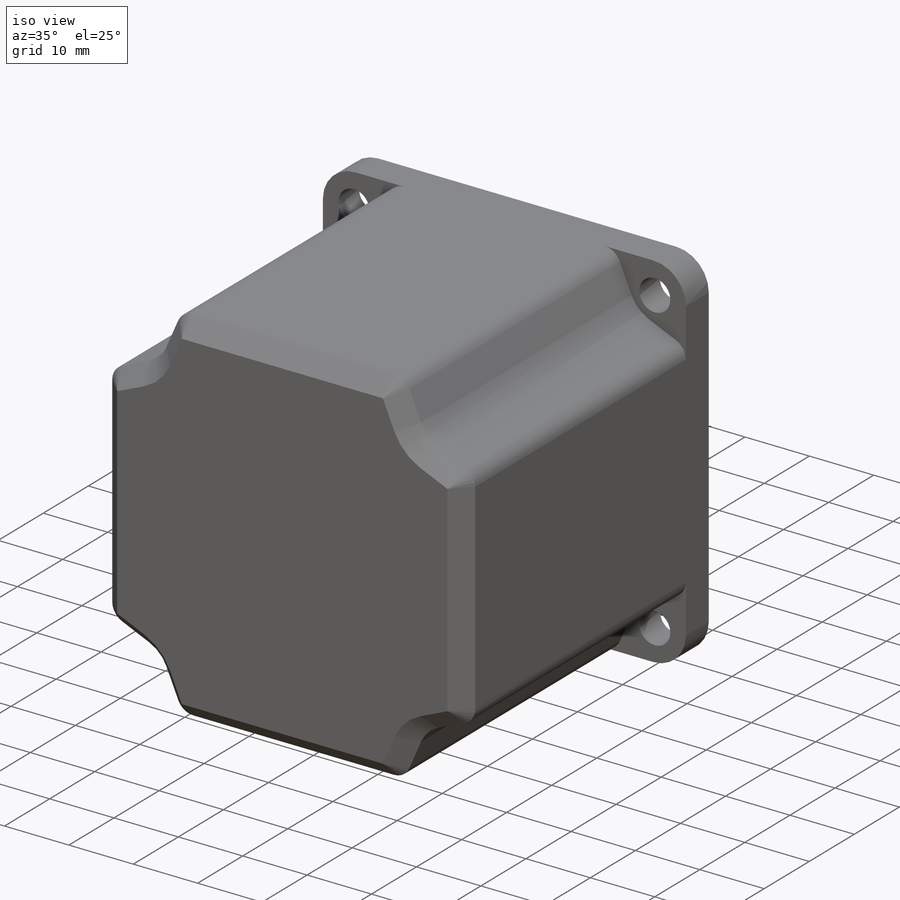
[diagram: iso view]
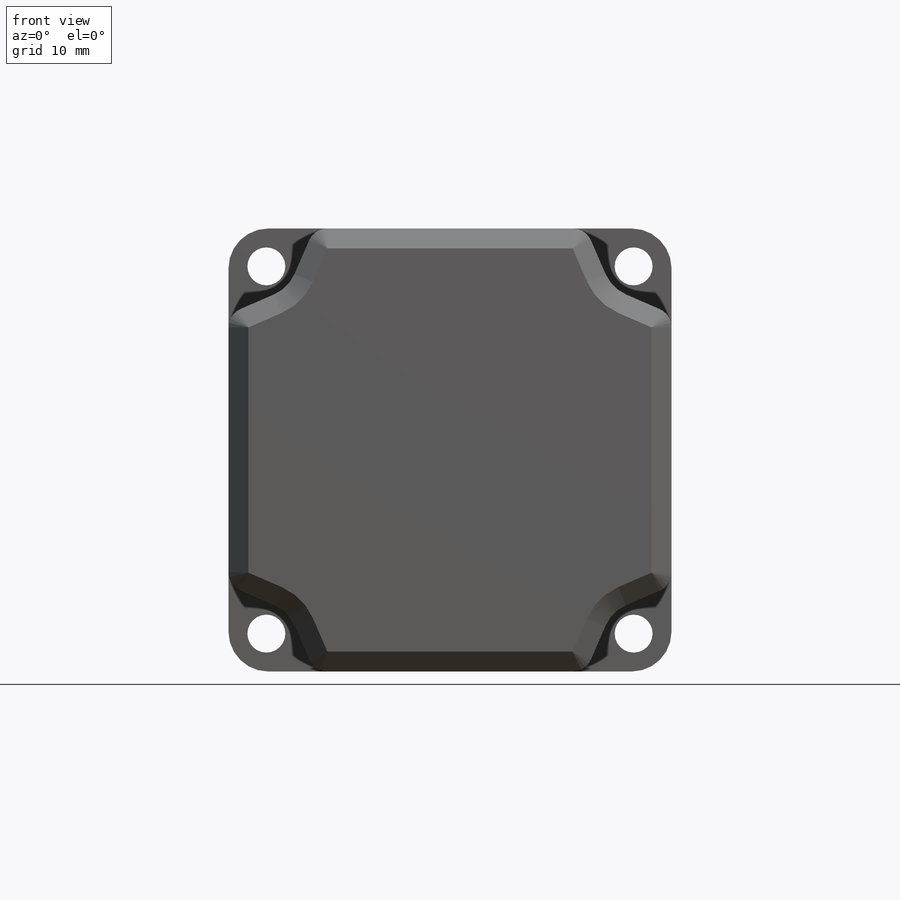
[diagram: front view]
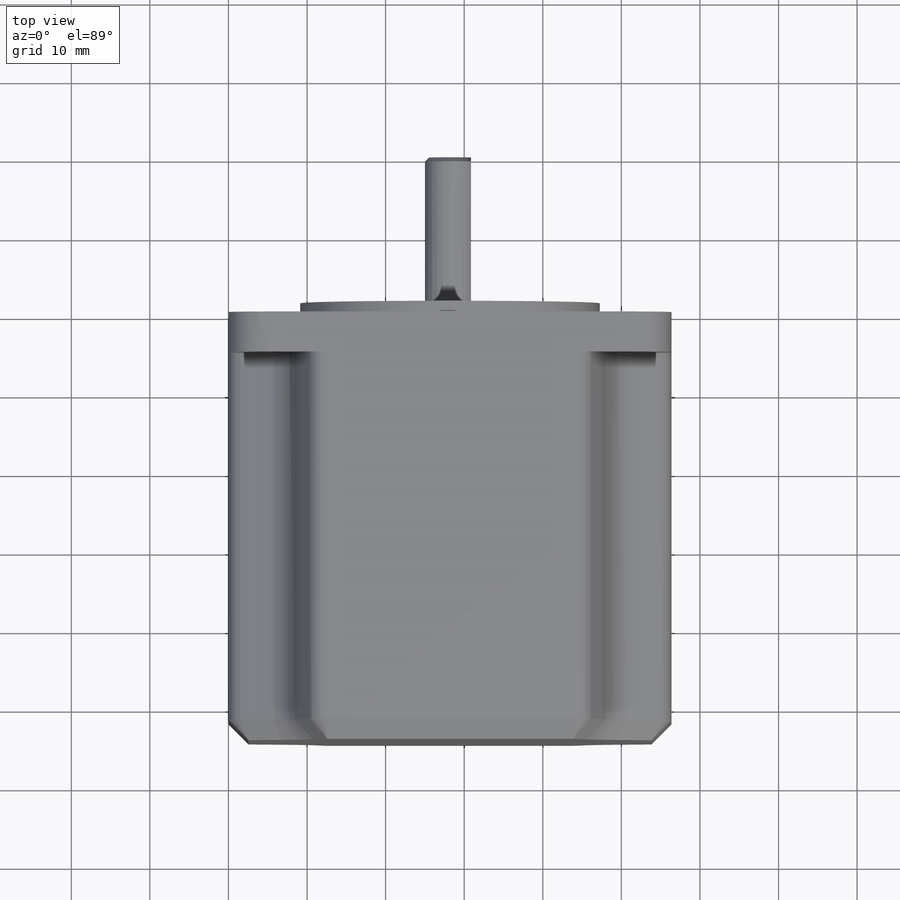
[diagram: top view]
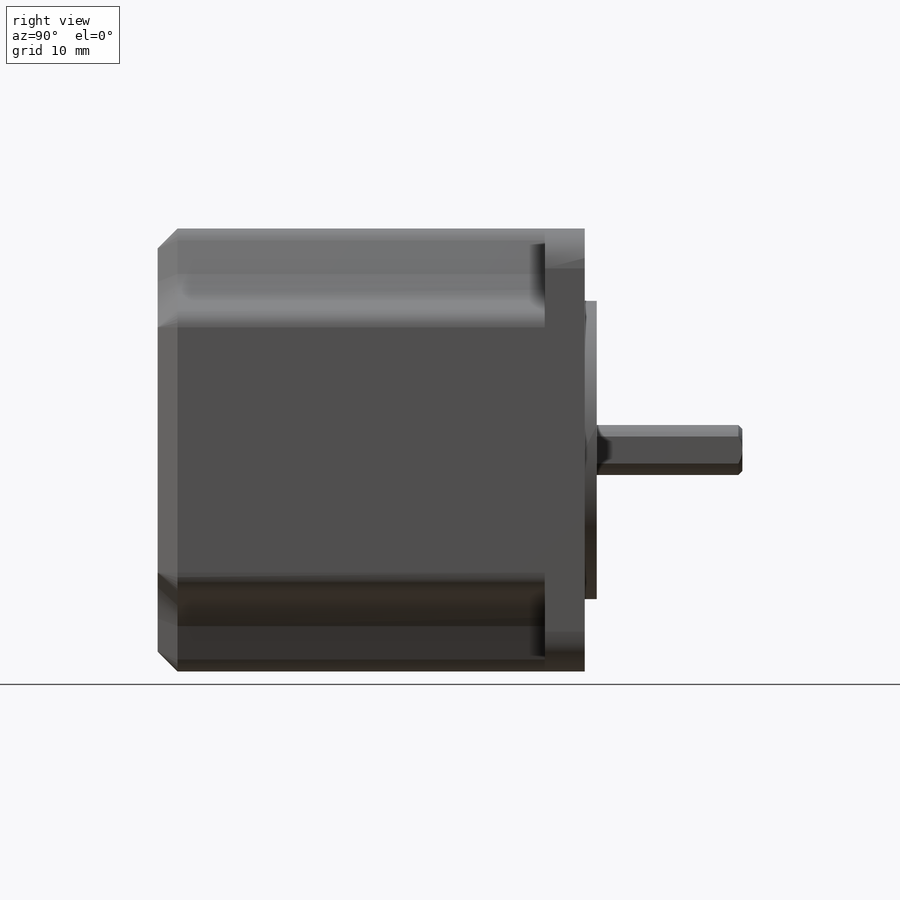
[diagram: right view]
SOLIDWORKS PART (.sldprt)
format: sldprt  version: not decoded by parser v0  size: 342,528 bytes
history: native  units: mm
features: sketch x5, extrude x3, chamfer x3, cut_extrude x2, fillet x2, material x1 (+11 scaffold rows collapsed)
feature tree (27):
  scaffold x11  (default folders/planes/origin — collapsed)
  material  "AISI Type A2 Tool Steel"
  sketch  "Sketch1"  dims[D1=56.388mm]
  extrude  "Boss-Extrude1"  Depth=54.356mm
  sketch  "Sketch3"  dims[D1=10.922mm D2=7.62mm]
  cut_extrude  "Cut-Extrude1"  Depth=49.276mm
  fillet  "Fillet2"  Radius=5.08mm
  fillet  "Fillet3"  Radius=2.54mm
  sketch  "Sketch6"  dims[D1=38.1mm]
  extrude  "Boss-Extrude2"  Depth=1.524mm
  sketch  "Sketch8"  dims[D1=6.35mm D2=5.842mm]
  extrude  "Boss-Extrude3"  Depth=18.542mm
  sketch  "Sketch10"  dims[c1.D3=4.826mm c1.D4=4.826mm c1.D5=4.826mm c1.D6=4.826mm c1.D9=4.826mm c1.D10=4.826mm c1.D1=4.826mm c1.D2=~4.85264mm c2.D2=90.0deg c3.D2=4.826mm c3.D7=4.826mm c3.D8=4.826mm c3.D9=4.826mm c3.D10=4.826mm c3.D11=4.826mm c3.D12=4.826mm c3.D1=4.826mm c4.D2=4.826mm]
  cut_extrude  "Cut-Extrude2"  Depth=18.542mm
  chamfer  "Chamfer1"  Distance=0.508mm Angle=45deg
  chamfer  "Chamfer2"  Distance=0.508mm Angle=45deg
  chamfer  "Chamfer3"  Distance=2.54mm Angle=45deg
decode coverage: 15 of 15 modeling features carry decoded parameters
note: ~ marks probable driven/reference dimensions
note: suppression state not decoded; provenance and decode notes live in map.json
